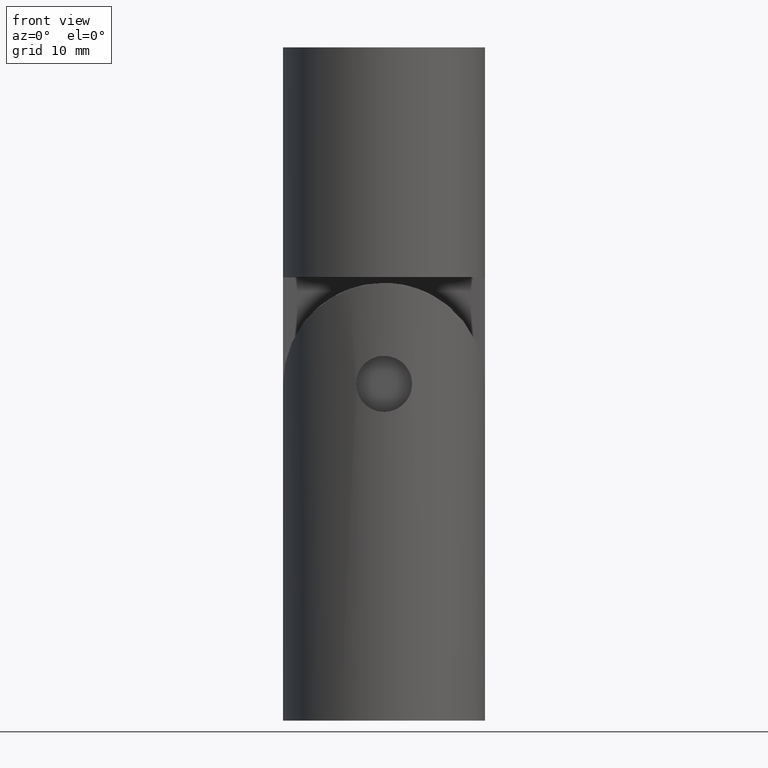
[diagram: clean part render]
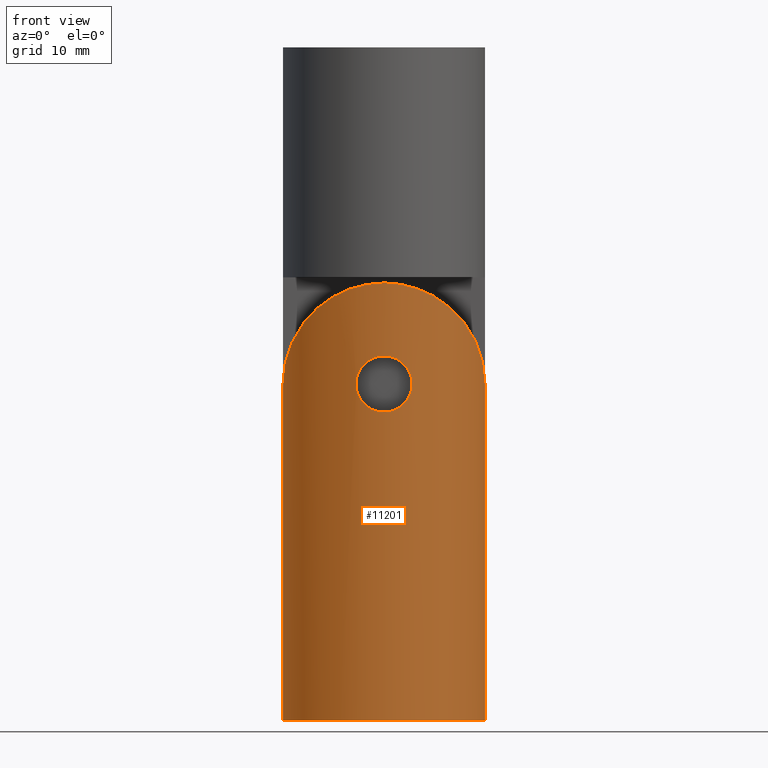
[diagram: same view with one face highlighted and labeled with its STEP entity id]
A machine part, front view. The second image highlights one B-rep face of the part: STEP entity #11201.
In plain terms, the highlighted cylindrical surface (partial cylindrical patch) has radius 9 mm, axis along (0, 0, 1).
Its self-contained STEP definition (entity closure, byte-faithful):
#158 = CARTESIAN_POINT ( 'NONE',  ( -1.987326152906704335, 8.778333437099973935, -7.974595165986447576 ) ) ;
#173 = ORIENTED_EDGE ( 'NONE', *, *, #11966, .F. ) ;
#315 = CARTESIAN_POINT ( 'NONE',  ( 0.6521088956089946542, 8.977796589174086961, -7.080951311515344848 ) ) ;
#359 = CARTESIAN_POINT ( 'NONE',  ( 1.526003146960137169, 8.870746670245258869, -11.48693979779456775 ) ) ;
#403 = CARTESIAN_POINT ( 'NONE',  ( 0.3296183598395983072, 8.995411571750063118, -7.016374765418830428 ) ) ;
#449 = CARTESIAN_POINT ( 'NONE',  ( 0.3291881920414577167, 8.995411023346195023, -11.98361997616899188 ) ) ;
#450 = CARTESIAN_POINT ( 'NONE',  ( 9.000000000000007105, 0.000000000000000000, -9.500000000000005329 ) ) ;
#466 = CARTESIAN_POINT ( 'NONE',  ( 9.000000000000007105, 0.000000000000000000, -20.00000000000001421 ) ) ;
#552 = VERTEX_POINT ( 'NONE', #8664 ) ;
#865 = CARTESIAN_POINT ( 'NONE',  ( -2.500030989451442309, 8.645799272064213170, -9.664351746396070197 ) ) ;
#1002 = AXIS2_PLACEMENT_3D ( 'NONE', #5466, #9671, #7884 ) ;
#1005 = EDGE_CURVE ( 'NONE', #13424, #11663, #11937, .T. ) ;
#1226 = CARTESIAN_POINT ( 'NONE',  ( -9.000000000000007105, 0.000000000000000000, 0.000000000000000000 ) ) ;
#1351 = CARTESIAN_POINT ( 'NONE',  ( 2.499927711608202152, 8.645829135621307060, -9.665071197933253089 ) ) ;
#1399 = CARTESIAN_POINT ( 'NONE',  ( 2.183572246830407959, 8.732050962826622964, -10.76012170301599546 ) ) ;
#1445 = CARTESIAN_POINT ( 'NONE',  ( 2.182644689185482711, 8.732301780522893964, -8.237378524449656680 ) ) ;
#1495 = CARTESIAN_POINT ( 'NONE',  ( 1.997692456570612674, 8.778606084503310925, -11.03768434598818793 ) ) ;
#1796 = VERTEX_POINT ( 'NONE', #12150 ) ;
#1926 = CARTESIAN_POINT ( 'NONE',  ( -0.8108634942156945913, 8.964677275008757107, -11.87046681335351472 ) ) ;
#2057 = CARTESIAN_POINT ( 'NONE',  ( -9.000000000000007105, 0.000000000000000000, -9.500000000000005329 ) ) ;
#2107 = CARTESIAN_POINT ( 'NONE',  ( -5.272077938642148354, 9.000000000000000000, -18.50000000000001066 ) ) ;
#2200 = CARTESIAN_POINT ( 'NONE',  ( -2.483919989439139719, 8.650505636719309166, -9.827147287110841845 ) ) ;
#2240 = CARTESIAN_POINT ( 'NONE',  ( 3.061534916972600903E-16, 9.000000000000000000, -7.000000000000007105 ) ) ;
#2462 = CARTESIAN_POINT ( 'NONE',  ( 0.000000000000000000, 9.000000000000015987, -18.50000000000001776 ) ) ;
#2501 = CARTESIAN_POINT ( 'NONE',  ( 9.000000000000007105, 5.272077938642142136, -14.77207793864215013 ) ) ;
#2508 = ORIENTED_EDGE ( 'NONE', *, *, #1005, .T. ) ;
#2916 = CARTESIAN_POINT ( 'NONE',  ( -0.1660159006943635884, 9.000000000000001776, -12.00000000000000533 ) ) ;
#3136 = CARTESIAN_POINT ( 'NONE',  ( 0.000000000000000000, 9.000000000000015987, -18.50000000000001776 ) ) ;
#3188 = CARTESIAN_POINT ( 'NONE',  ( -1.255217901836978678, 8.913098714508002729, -11.66821366236469970 ) ) ;
#3287 = CARTESIAN_POINT ( 'NONE',  ( -0.6576851963488370423, 8.981048899764809690, -7.066103565460889691 ) ) ;
#3459 = CARTESIAN_POINT ( 'NONE',  ( 1.651665398015363051, 8.847932021503247313, -7.616197013243828806 ) ) ;
#3508 = CARTESIAN_POINT ( 'NONE',  ( 0.6498628731087434662, 8.977943115818492359, -11.91958907626068509 ) ) ;
#3524 = DIRECTION ( 'NONE',  ( 0.000000000000000000, 0.000000000000000000, 1.000000000000000000 ) ) ;
#3680 = LINE ( 'NONE', #9142, #8176 ) ;
#3860 = CARTESIAN_POINT ( 'NONE',  ( -9.000000000000007105, 0.000000000000000000, -20.00000000000001421 ) ) ;
#3977 = CARTESIAN_POINT ( 'NONE',  ( -2.371344241096262184, 8.682218456763084902, -10.30829198598375385 ) ) ;
#4016 = CARTESIAN_POINT ( 'NONE',  ( -1.651983864089473508, 8.847868738732911353, -7.616510562774323034 ) ) ;
#4328 = CARTESIAN_POINT ( 'NONE',  ( -1.526873254777860955, 8.870600810514492451, -11.48629819780440542 ) ) ;
#4458 = CARTESIAN_POINT ( 'NONE',  ( -9.000000000000000000, 0.000000000000000000, 20.50000000000001776 ) ) ;
#4490 = CARTESIAN_POINT ( 'NONE',  ( 1.111538867057185076, 8.932391037390502220, -11.74528488273700155 ) ) ;
#4616 = CARTESIAN_POINT ( 'NONE',  ( 2.370939854789229084, 8.682328008581816192, -10.30939348950742129 ) ) ;
#4995 = CARTESIAN_POINT ( 'NONE',  ( 5.053145897305400862E-16, 9.000000000000000000, -12.00000000000000711 ) ) ;
#5043 = CARTESIAN_POINT ( 'NONE',  ( -1.997779504158505137, 8.778581530014962553, -11.03752890129740116 ) ) ;
#5099 = FACE_OUTER_BOUND ( 'NONE', #5889, .T. ) ;
#5318 = CARTESIAN_POINT ( 'NONE',  ( -1.255842923225235053, 8.913004268231345506, -7.332184716836890992 ) ) ;
#5367 = CARTESIAN_POINT ( 'NONE',  ( -0.6513314432288568323, 8.977847318827979706, -11.91923578284467133 ) ) ;
#5398 = EDGE_CURVE ( 'NONE', #5503, #7596, #12373, .T. ) ;
#5466 = CARTESIAN_POINT ( 'NONE',  ( 0.000000000000000000, 0.000000000000000000, 20.50000000000001776 ) ) ;
#5492 = CARTESIAN_POINT ( 'NONE',  ( 1.109621534386455721, 8.932622144832421895, -7.253803484970582360 ) ) ;
#5497 =( BOUNDED_CURVE ( )  B_SPLINE_CURVE ( 3, ( #3136, #2107, #7340, #2057 ),
 .UNSPECIFIED., .F., .F. ) 
 B_SPLINE_CURVE_WITH_KNOTS ( ( 4, 4 ),
 ( 0.000000000000000000, 1.570796326794896780 ),
 .UNSPECIFIED. ) 
 CURVE ( )  GEOMETRIC_REPRESENTATION_ITEM ( )  RATIONAL_B_SPLINE_CURVE ( ( 1.000000000000000000, 0.8047378541243649375, 0.8047378541243649375, 1.000000000000000000 ) ) 
 REPRESENTATION_ITEM ( '' )  );
#5500 = ORIENTED_EDGE ( 'NONE', *, *, #10505, .T. ) ;
#5503 = VERTEX_POINT ( 'NONE', #12660 ) ;
#5567 = ORIENTED_EDGE ( 'NONE', *, *, #12070, .F. ) ;
#5618 = CARTESIAN_POINT ( 'NONE',  ( 1.254838128844982803, 8.913148341781170103, -11.66840877949453592 ) ) ;
#5710 = CARTESIAN_POINT ( 'NONE',  ( 5.272077938642148354, 9.000000000000000000, -18.50000000000001066 ) ) ;
#5889 = EDGE_LOOP ( 'NONE', ( #11519, #5500, #5567, #7078, #8909, #2508, #173 ) ) ;
#5906 = EDGE_CURVE ( 'NONE', #7756, #6450, #7218, .T. ) ;
#6078 = CYLINDRICAL_SURFACE ( 'NONE', #1002, 9.000000000000007105 ) ;
#6267 = ORIENTED_EDGE ( 'NONE', *, *, #8565, .T. ) ;
#6415 = EDGE_CURVE ( 'NONE', #8146, #552, #8835, .T. ) ;
#6450 = VERTEX_POINT ( 'NONE', #10775 ) ;
#6498 = DIRECTION ( 'NONE',  ( 1.000000000000000000, 0.000000000000000000, 0.000000000000000000 ) ) ;
#6529 = CARTESIAN_POINT ( 'NONE',  ( 0.8080436968560668065, 8.964935232108258489, -7.128560749739598634 ) ) ;
#6618 = CARTESIAN_POINT ( 'NONE',  ( 1.998469755382199509, 8.778480347611322898, -7.962805231444935572 ) ) ;
#6880 = DIRECTION ( 'NONE',  ( 0.000000000000000000, 0.000000000000000000, 1.000000000000000000 ) ) ;
#6951 = EDGE_CURVE ( 'NONE', #6450, #13424, #5497, .T. ) ;
#7039 = VECTOR ( 'NONE', #10124, 1000.000000000000000 ) ;
#7078 = ORIENTED_EDGE ( 'NONE', *, *, #5906, .T. ) ;
#7095 = DIRECTION ( 'NONE',  ( 0.000000000000000000, 0.000000000000000000, -1.000000000000000000 ) ) ;
#7218 =( BOUNDED_CURVE ( )  B_SPLINE_CURVE ( 3, ( #450, #2501, #5710, #2462 ),
 .UNSPECIFIED., .F., .F. ) 
 B_SPLINE_CURVE_WITH_KNOTS ( ( 4, 4 ),
 ( 4.712388980384689674, 6.283185307179586232 ),
 .UNSPECIFIED. ) 
 CURVE ( )  GEOMETRIC_REPRESENTATION_ITEM ( )  RATIONAL_B_SPLINE_CURVE ( ( 1.000000000000000000, 0.8047378541243649375, 0.8047378541243649375, 1.000000000000000000 ) ) 
 REPRESENTATION_ITEM ( '' )  );
#7294 = CARTESIAN_POINT ( 'NONE',  ( -1.112037700728682799, 8.932318310688895480, -11.74499101816022950 ) ) ;
#7340 = CARTESIAN_POINT ( 'NONE',  ( -9.000000000000005329, 5.272077938642142136, -14.77207793864215013 ) ) ;
#7356 = VECTOR ( 'NONE', #3524, 1000.000000000000000 ) ;
#7388 = CARTESIAN_POINT ( 'NONE',  ( -2.499968921919490494, 8.645817219354125172, -9.334706823499304917 ) ) ;
#7547 = CARTESIAN_POINT ( 'NONE',  ( 1.653710837485886875, 8.847537253409059943, -11.38190131003615591 ) ) ;
#7596 = VERTEX_POINT ( 'NONE', #4458 ) ;
#7678 = CARTESIAN_POINT ( 'NONE',  ( 0.8091155227707332864, 8.964845808414352746, -11.87110837551503018 ) ) ;
#7756 = VERTEX_POINT ( 'NONE', #12532 ) ;
#7884 = DIRECTION ( 'NONE',  ( -1.000000000000000000, 0.000000000000000000, 0.000000000000000000 ) ) ;
#7932 = EDGE_LOOP ( 'NONE', ( #9092, #6267 ) ) ;
#8146 = VERTEX_POINT ( 'NONE', #9416 ) ;
#8176 = VECTOR ( 'NONE', #7095, 1000.000000000000000 ) ;
#8339 = CARTESIAN_POINT ( 'NONE',  ( -2.371642639064345470, 8.682143057015791143, -8.692208049318180585 ) ) ;
#8383 = CARTESIAN_POINT ( 'NONE',  ( -1.654061991968503342, 8.847470434158799080, -11.38158402526046054 ) ) ;
#8565 = EDGE_CURVE ( 'NONE', #552, #8146, #9170, .T. ) ;
#8662 = LINE ( 'NONE', #466, #7356 ) ;
#8664 = CARTESIAN_POINT ( 'NONE',  ( 3.061534916972600903E-16, 9.000000000000000000, -7.000000000000007105 ) ) ;
#8736 = CARTESIAN_POINT ( 'NONE',  ( 2.371855050016844935, 8.682082796083429699, -8.692942796855634313 ) ) ;
#8781 = CARTESIAN_POINT ( 'NONE',  ( 5.053145897305400862E-16, 9.000000000000000000, -12.00000000000000711 ) ) ;
#8835 = B_SPLINE_CURVE_WITH_KNOTS ( 'NONE', 3,
 ( #8781, #12818, #449, #3508, #7678, #4490, #5618, #359, #7547, #1495, #1399, #4616, #12771, #9739, #1351, #9606, #11858, #12856, #8736, #1445, #6618, #3459, #11674, #10733, #5492, #6529, #315, #403, #10692, #12899 ),
 .UNSPECIFIED., .F., .F.,
 ( 4, 2, 2, 2, 2, 2, 2, 2, 2, 2, 2, 2, 2, 2, 4 ),
 ( 4.907168076817130808E-19, 0.0004909344069399248448, 0.0009818688138798492560, 0.001472803220819773884, 0.001963737627759698512, 0.002945606441639544298, 0.003436540848579465457, 0.003927475255519386615, 0.004418409662459307774, 0.004909344069399228065, 0.005891212883279069515, 0.006382147290218990673, 0.006873081697158911832, 0.007364016104098832123, 0.007854950511038752414 ),
 .UNSPECIFIED. ) ;
#8909 = ORIENTED_EDGE ( 'NONE', *, *, #6951, .T. ) ;
#9092 = ORIENTED_EDGE ( 'NONE', *, *, #6415, .T. ) ;
#9118 = CARTESIAN_POINT ( 'NONE',  ( -1.526675743768756366, 8.870628371581872784, -7.513589739475108331 ) ) ;
#9142 = CARTESIAN_POINT ( 'NONE',  ( 9.000000000000007105, 1.102182119232619883E-15, 20.50000000000001776 ) ) ;
#9170 = B_SPLINE_CURVE_WITH_KNOTS ( 'NONE', 3,
 ( #2240, #12519, #3287, #9485, #5318, #9118, #4016, #10423, #158, #9385, #11557, #8339, #12567, #13314, #7388, #865, #2200, #11238, #3977, #10521, #5043, #8383, #4328, #3188, #7294, #1926, #5367, #11196, #2916, #4995 ),
 .UNSPECIFIED., .F., .F.,
 ( 4, 2, 2, 2, 2, 2, 2, 2, 2, 2, 2, 2, 2, 2, 4 ),
 ( 0.007854950511038752414, 0.008836552623206889862, 0.009327353679290958585, 0.009818154735375027309, 0.01030895579145909603, 0.01079975684754316649, 0.01129055790362723695, 0.01178135895971130741, 0.01227216001579537787, 0.01276296107187944659, 0.01374456318404758751, 0.01423536424013165796, 0.01472616529621572669, 0.01521696635229979541, 0.01570776740838386587 ),
 .UNSPECIFIED. ) ;
#9182 = VECTOR ( 'NONE', #6880, 1000.000000000000000 ) ;
#9385 = CARTESIAN_POINT ( 'NONE',  ( -2.167822430420655255, 8.735510808252687553, -8.244264734976370690 ) ) ;
#9416 = CARTESIAN_POINT ( 'NONE',  ( 5.053145897305400862E-16, 9.000000000000000000, -12.00000000000000711 ) ) ;
#9485 = CARTESIAN_POINT ( 'NONE',  ( -1.109549166576351054, 8.932628277070277178, -7.253780717552412050 ) ) ;
#9606 = CARTESIAN_POINT ( 'NONE',  ( 2.500071805745158304, 8.645787469730150221, -9.337125724032706131 ) ) ;
#9626 = CARTESIAN_POINT ( 'NONE',  ( 0.000000000000000000, 0.000000000000000000, 20.50000000000001776 ) ) ;
#9671 = DIRECTION ( 'NONE',  ( 0.000000000000000000, 0.000000000000000000, -1.000000000000000000 ) ) ;
#9739 = CARTESIAN_POINT ( 'NONE',  ( 2.483880143575102117, 8.650518072268280179, -9.827842713151895282 ) ) ;
#10124 = DIRECTION ( 'NONE',  ( 0.000000000000000000, 0.000000000000000000, -1.000000000000000000 ) ) ;
#10423 = CARTESIAN_POINT ( 'NONE',  ( -1.882622513964983257, 8.801679633738737962, -7.847028246682702601 ) ) ;
#10505 = EDGE_CURVE ( 'NONE', #5503, #1796, #3680, .T. ) ;
#10521 = CARTESIAN_POINT ( 'NONE',  ( -2.183633148657765588, 8.732039259819835308, -10.76023174441325381 ) ) ;
#10609 = LINE ( 'NONE', #11176, #7039 ) ;
#10692 = CARTESIAN_POINT ( 'NONE',  ( 0.1636670268394987415, 9.000000000000000000, -7.000000000000005329 ) ) ;
#10733 = CARTESIAN_POINT ( 'NONE',  ( 1.256092898507499500, 8.912964192413049602, -7.332357982888364489 ) ) ;
#10775 = CARTESIAN_POINT ( 'NONE',  ( 0.000000000000000000, 9.000000000000015987, -18.50000000000001776 ) ) ;
#10932 = FACE_BOUND ( 'NONE', #7932, .T. ) ;
#11176 = CARTESIAN_POINT ( 'NONE',  ( -9.000000000000007105, 0.000000000000000000, 20.50000000000001776 ) ) ;
#11196 = CARTESIAN_POINT ( 'NONE',  ( -0.3294742882530439232, 8.995411153610794130, -11.98362257907976236 ) ) ;
#11201 = ADVANCED_FACE ( 'NONE', ( #10932, #5099 ), #6078, .T. ) ;
#11238 = CARTESIAN_POINT ( 'NONE',  ( -2.419914510972601018, 8.668628498466878440, -10.14876622984211885 ) ) ;
#11496 = AXIS2_PLACEMENT_3D ( 'NONE', #9626, #12838, #6498 ) ;
#11519 = ORIENTED_EDGE ( 'NONE', *, *, #5398, .F. ) ;
#11557 = CARTESIAN_POINT ( 'NONE',  ( -2.244926864317481119, 8.715767335340089517, -8.387561230053490746 ) ) ;
#11663 = VERTEX_POINT ( 'NONE', #1226 ) ;
#11674 = CARTESIAN_POINT ( 'NONE',  ( 1.526302015962157421, 8.870687809915756006, -7.513333586104947948 ) ) ;
#11858 = CARTESIAN_POINT ( 'NONE',  ( 2.483603041882457951, 8.650597114769245977, -9.170516520863294829 ) ) ;
#11937 = LINE ( 'NONE', #3860, #9182 ) ;
#11966 = EDGE_CURVE ( 'NONE', #7596, #11663, #10609, .T. ) ;
#12070 = EDGE_CURVE ( 'NONE', #7756, #1796, #8662, .T. ) ;
#12150 = CARTESIAN_POINT ( 'NONE',  ( 9.000000000000007105, 0.000000000000000000, 0.000000000000000000 ) ) ;
#12373 = CIRCLE ( 'NONE', #11496, 9.000000000000007105 ) ;
#12519 = CARTESIAN_POINT ( 'NONE',  ( -0.3272451410348841683, 9.000000000000001776, -7.000000000000007105 ) ) ;
#12532 = CARTESIAN_POINT ( 'NONE',  ( 9.000000000000007105, 0.000000000000000000, -9.500000000000005329 ) ) ;
#12567 = CARTESIAN_POINT ( 'NONE',  ( -2.419240320818407231, 8.668816926006057244, -8.848899827594738809 ) ) ;
#12660 = CARTESIAN_POINT ( 'NONE',  ( 9.000000000000000000, 1.102182119232618700E-15, 20.50000000000001776 ) ) ;
#12769 = CARTESIAN_POINT ( 'NONE',  ( -9.000000000000007105, 0.000000000000000000, -9.500000000000005329 ) ) ;
#12771 = CARTESIAN_POINT ( 'NONE',  ( 2.419378371902870306, 8.668779140101300129, -10.15096060232712105 ) ) ;
#12818 = CARTESIAN_POINT ( 'NONE',  ( 0.1660610072852487240, 9.000000000000000000, -12.00000000000000711 ) ) ;
#12838 = DIRECTION ( 'NONE',  ( 0.000000000000000000, 0.000000000000000000, 1.000000000000000000 ) ) ;
#12856 = CARTESIAN_POINT ( 'NONE',  ( 2.419359100678276864, 8.668784000865809247, -8.849196669771107082 ) ) ;
#12899 = CARTESIAN_POINT ( 'NONE',  ( 3.061534916972600903E-16, 9.000000000000000000, -7.000000000000007105 ) ) ;
#13314 = CARTESIAN_POINT ( 'NONE',  ( -2.483372552279767387, 8.650663060891126577, -9.169068087118837695 ) ) ;
#13424 = VERTEX_POINT ( 'NONE', #12769 ) ;